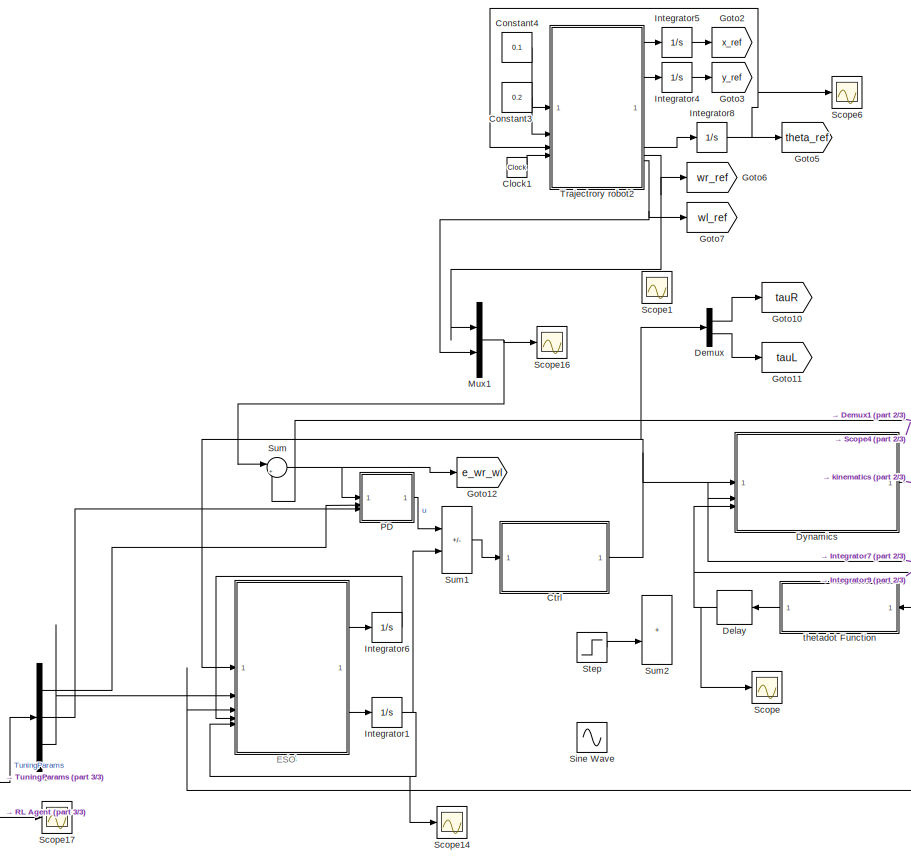
[diagram: root canvas - part 1/3, center side, full height]
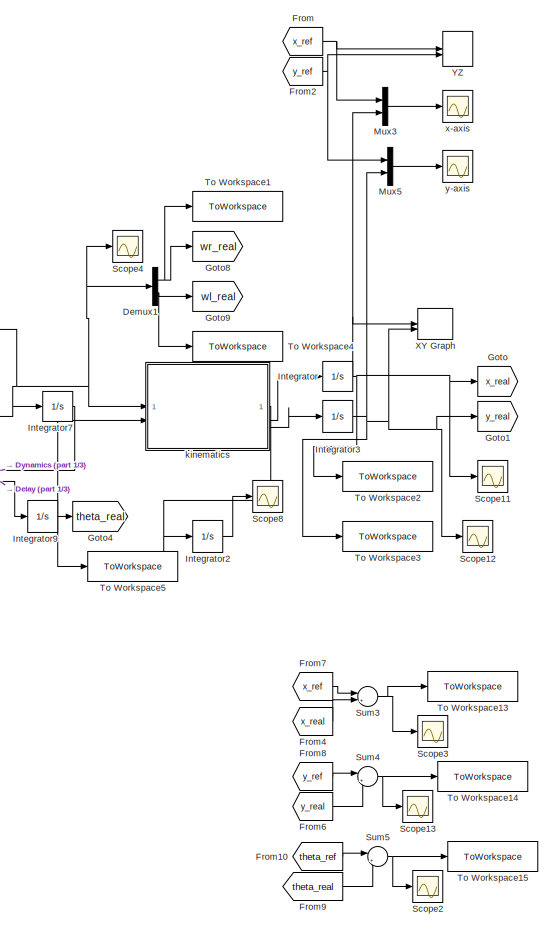
[diagram: root canvas - part 2/3, right side, full height]
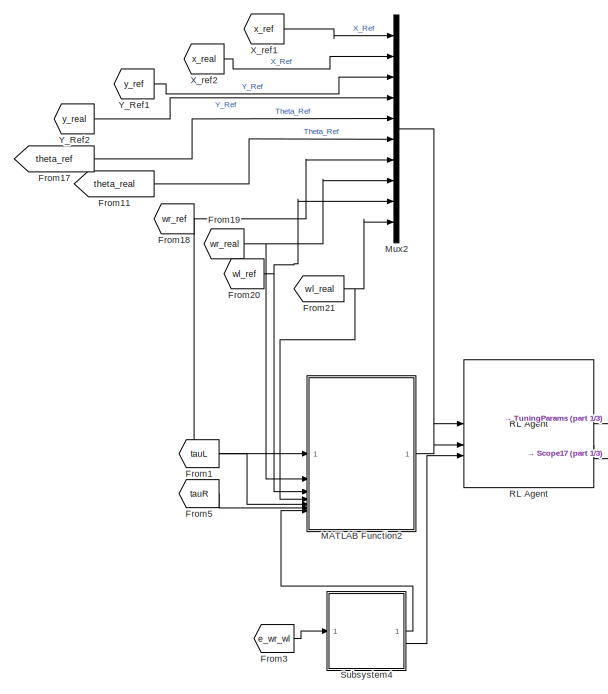
[diagram: root canvas - part 3/3, bottom left region]
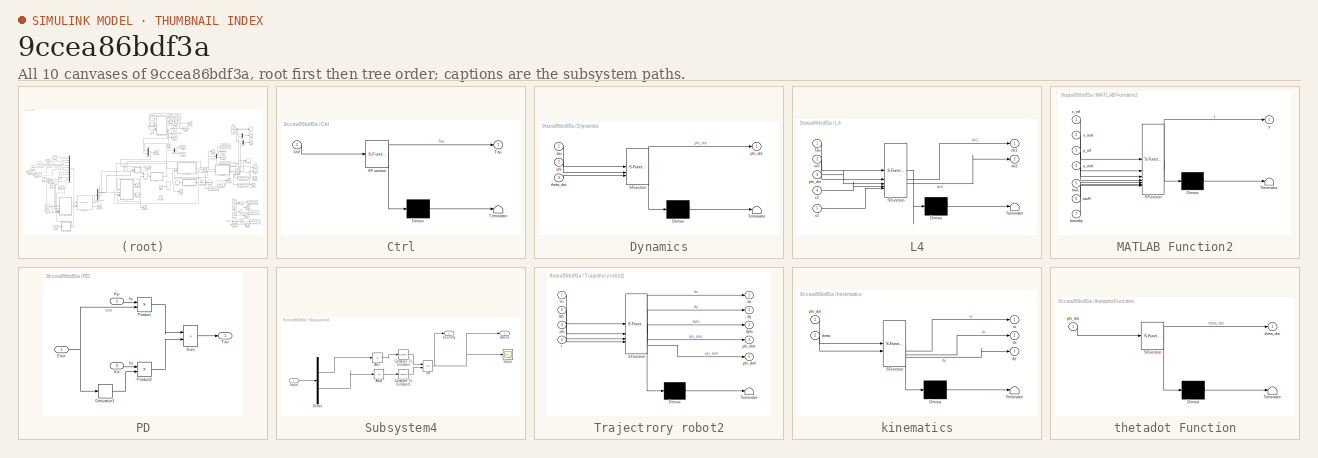
[diagram: thumbnail index - all 10 canvases of the model, root first then tree order]
MODEL slx_9ccea86bdf3a
KIND model
CONFIG AbsTol = auto
CONFIG EnableMultiTasking = off
CONFIG FixedStep = 0.01
CONFIG MaxStep = auto
CONFIG MinStep = auto
CONFIG RelTol = 1e-5
CONFIG SampleTimeConstraint = Unconstrained
CONFIG SolverName = ode4
CONFIG StartTime = 0.0
CONFIG StopTime = 31
BLOCK [Clock] Clock1
BLOCK [Constant] Constant3
  Value = 0.2
BLOCK [Constant] Constant4
  Value = 0.1
BLOCK [SubSystem] Ctrl
  ErrorFcn = Stateflow.Translate.translate
  PermitHierarchicalResolution = ExplicitOnly
  SFBlockType = MATLAB Function
  TreatAsAtomicUnit = on
BLOCK [Demux] Ctrl/ Demux 
  Outputs = 1
BLOCK [S-Function] Ctrl/ SFunction 
  EnableBusSupport = on
  FunctionName = sf_sfun
  PortCounts = [1 2]
  SFcnIsStateOwnerBlock = off
  SFunctionDeploymentMode = off
  Tag = Stateflow S-Function 5
BLOCK [Terminator] Ctrl/ Terminator 
BLOCK [Outport] Ctrl/Tau
  VectorParamsAs1DForOutWhenUnconnected = off
BLOCK [Inport] Ctrl/Uof
BLOCK [Delay] Delay
  DelayLength = 1
  InitialCondition = 0
  InputPortMap = u0
BLOCK [Demux] Demux
  Outputs = 2
BLOCK [Demux] Demux1
  Outputs = 2
BLOCK [Demux] Demux4
  Outputs = 3
BLOCK [SubSystem] Dynamics
  ErrorFcn = Stateflow.Translate.translate
  PermitHierarchicalResolution = ExplicitOnly
  SFBlockType = MATLAB Function
  TreatAsAtomicUnit = on
BLOCK [Demux] Dynamics/ Demux 
  Outputs = 1
BLOCK [S-Function] Dynamics/ SFunction 
  EnableBusSupport = on
  FunctionName = sf_sfun
  PortCounts = [3 2]
  SFcnIsStateOwnerBlock = off
  SFunctionDeploymentMode = off
  Tag = Stateflow S-Function 3
BLOCK [Terminator] Dynamics/ Terminator 
BLOCK [Inport] Dynamics/phi
  Port = 2
BLOCK [Outport] Dynamics/phi_dot
BLOCK [Inport] Dynamics/tau
BLOCK [Inport] Dynamics/theta_dot
  Port = 3
BLOCK [From] From
  GotoTag = x_ref
BLOCK [From] From1
  GotoTag = tauL
BLOCK [From] From10
  GotoTag = theta_ref
BLOCK [From] From11
  GotoTag = theta_real
BLOCK [From] From17
  GotoTag = theta_ref
BLOCK [From] From18
  GotoTag = wr_ref
BLOCK [From] From19
  GotoTag = wr_real
BLOCK [From] From2
  GotoTag = y_ref
BLOCK [From] From20
  GotoTag = wl_ref
BLOCK [From] From21
  GotoTag = wl_real
BLOCK [From] From3
  GotoTag = e_wr_wl
BLOCK [From] From4
  GotoTag = x_real
BLOCK [From] From5
  GotoTag = tauR
BLOCK [From] From6
  GotoTag = y_real
BLOCK [From] From7
  GotoTag = x_ref
BLOCK [From] From8
  GotoTag = y_ref
BLOCK [From] From9
  GotoTag = theta_real
BLOCK [Goto] Goto
  GotoTag = x_real
BLOCK [Goto] Goto1
  GotoTag = y_real
BLOCK [Goto] Goto10
  GotoTag = tauR
BLOCK [Goto] Goto11
  GotoTag = tauL
BLOCK [Goto] Goto12
  GotoTag = e_wr_wl
BLOCK [Goto] Goto2
  GotoTag = x_ref
BLOCK [Goto] Goto3
  GotoTag = y_ref
BLOCK [Goto] Goto4
  GotoTag = theta_real
BLOCK [Goto] Goto5
  GotoTag = theta_ref
BLOCK [Goto] Goto6
  GotoTag = wr_ref
BLOCK [Goto] Goto7
  GotoTag = wl_ref
BLOCK [Goto] Goto8
  GotoTag = wr_real
BLOCK [Goto] Goto9
  GotoTag = wl_real
BLOCK [Integrator] Integrator
BLOCK [Integrator] Integrator1
  InitialCondition = [0;0]
BLOCK [Integrator] Integrator2
BLOCK [Integrator] Integrator3
BLOCK [Integrator] Integrator4
BLOCK [Integrator] Integrator5
BLOCK [Integrator] Integrator6
  InitialCondition = [0;0]
BLOCK [Integrator] Integrator7
  InitialCondition = [0;0]
BLOCK [Integrator] Integrator8
BLOCK [Integrator] Integrator9
BLOCK [SubSystem] L4
  ErrorFcn = Stateflow.Translate.translate
  PermitHierarchicalResolution = ExplicitOnly
  SFBlockType = MATLAB Function
  TreatAsAtomicUnit = on
BLOCK [Demux] L4/ Demux 
  Outputs = 1
BLOCK [S-Function] L4/ SFunction 
  EnableBusSupport = on
  FunctionName = sf_sfun
  PortCounts = [5 3]
  SFcnIsStateOwnerBlock = off
  SFunctionDeploymentMode = off
  Tag = Stateflow S-Function 7
BLOCK [Terminator] L4/ Terminator 
BLOCK [Inport] L4/Tau
BLOCK [Outport] L4/dx1
  VectorParamsAs1DForOutWhenUnconnected = off
BLOCK [Outport] L4/dx2
  Port = 2
  VectorParamsAs1DForOutWhenUnconnected = off
BLOCK [Inport] L4/phi_dot
  Port = 3
BLOCK [Inport] L4/w0
  Port = 2
BLOCK [Inport] L4/x1
  Port = 4
BLOCK [Inport] L4/x2
  Port = 5
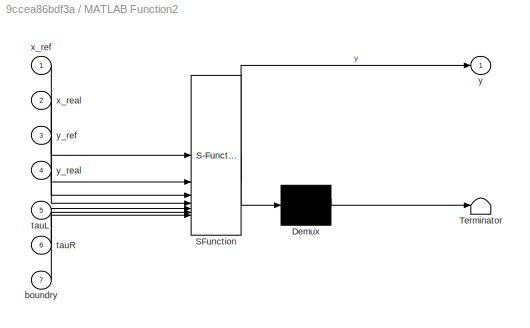
BLOCK [SubSystem] MATLAB Function2
  ErrorFcn = Stateflow.Translate.translate
  PermitHierarchicalResolution = ExplicitOnly
  SFBlockType = MATLAB Function
  TreatAsAtomicUnit = on
BLOCK [Demux] MATLAB Function2/ Demux 
  Outputs = 1
BLOCK [S-Function] MATLAB Function2/ SFunction 
  EnableBusSupport = on
  FunctionName = sf_sfun
  PortCounts = [7 2]
  SFcnIsStateOwnerBlock = off
  SFunctionDeploymentMode = off
  Tag = Stateflow S-Function 9
BLOCK [Terminator] MATLAB Function2/ Terminator 
BLOCK [Inport] MATLAB Function2/boundry
  Port = 7
BLOCK [Inport] MATLAB Function2/tauL
  Port = 5
BLOCK [Inport] MATLAB Function2/tauR
  Port = 6
BLOCK [Inport] MATLAB Function2/x_real
  Port = 2
BLOCK [Inport] MATLAB Function2/x_ref
BLOCK [Outport] MATLAB Function2/y
BLOCK [Inport] MATLAB Function2/y_real
  Port = 4
BLOCK [Inport] MATLAB Function2/y_ref
  Port = 3
BLOCK [Mux] Mux1
  DisplayOption = bar
  Inputs = 2
BLOCK [Mux] Mux2
  DisplayOption = bar
  Inputs = 10
BLOCK [Mux] Mux3
  DisplayOption = bar
  Inputs = 2
BLOCK [Mux] Mux5
  DisplayOption = bar
  Inputs = 2
BLOCK [SubSystem] PD
BLOCK [Derivative] PD/Derivative1
BLOCK [Inport] PD/Error
BLOCK [Inport] PD/Kd
  Port = 3
BLOCK [Inport] PD/Kp
  Port = 2
BLOCK [Product] PD/Product
BLOCK [Product] PD/Product2
BLOCK [Sum] PD/Sum
  IconShape = rectangular
  Inputs = |++
BLOCK [Outport] PD/Tau
BLOCK [Reference] RL Agent  REF=rllib/RL Agent
  SourceBlock = rllib/RL Agent
  SourceType = RL Agent
BLOCK [Scope] Scope
  Floating = off
  NumInputPorts = 1
  ScopeSpecificationString = Simulink.scopes.TimeScopeBlockCfg('CurrentConfiguration', extmgr.ConfigurationSet(extmgr.Configuration('Core','General UI',true),extmgr.Configuration('Core','Source UI',true),extmgr.Configuration('Sources','WiredSimulink',true,'DataLoggingVariableName','ScopeData4'),extmgr.Configuration('Visuals','Time Domain',true,'SerializedDisplays',{struct('MinYLimReal','-0.025','MaxYLimReal','0.225','YLabelRe...<+1352ch>
BLOCK [Scope] Scope1
  Floating = off
  NumInputPorts = 1
  ScopeSpecificationString = Simulink.scopes.TimeScopeBlockCfg('CurrentConfiguration', extmgr.ConfigurationSet(extmgr.Configuration('Core','General UI',true),extmgr.Configuration('Core','Source UI',true),extmgr.Configuration('Sources','WiredSimulink',true,'DataLoggingVariableName','ScopeData3'),extmgr.Configuration('Visuals','Time Domain',true,'SerializedDisplays',{struct('MinYLimReal','-0.77446','MaxYLimReal','6.97016','YLab...<+1478ch>
BLOCK [Scope] Scope11
  Floating = off
  NumInputPorts = 1
  ScopeSpecificationString = Simulink.scopes.TimeScopeBlockCfg('CurrentConfiguration', extmgr.ConfigurationSet(extmgr.Configuration('Core','General UI',true),extmgr.Configuration('Core','Source UI',true),extmgr.Configuration('Sources','WiredSimulink',true,'DataLoggingVariableName','ScopeData5'),extmgr.Configuration('Visuals','Time Domain',true,'SerializedDisplays',{struct('MinYLimReal','-0.4437','MaxYLimReal','2.05631','YLabe...<+1402ch>
BLOCK [Scope] Scope12
  Floating = off
  NumInputPorts = 1
  ScopeSpecificationString = Simulink.scopes.TimeScopeBlockCfg('CurrentConfiguration', extmgr.ConfigurationSet(extmgr.Configuration('Core','General UI',true),extmgr.Configuration('Core','Source UI',true),extmgr.Configuration('Sources','WiredSimulink',true,'DataLoggingVariableName','ScopeData6'),extmgr.Configuration('Visuals','Time Domain',true,'SerializedDisplays',{struct('MinYLimReal','-1.44972','MaxYLimReal','1.05028','YLab...<+1430ch>
BLOCK [Scope] Scope13
  Floating = off
  NumInputPorts = 1
  ScopeSpecificationString = Simulink.scopes.TimeScopeBlockCfg('CurrentConfiguration', extmgr.ConfigurationSet(extmgr.Configuration('Core','General UI',true),extmgr.Configuration('Core','Source UI',true),extmgr.Configuration('Sources','WiredSimulink',true,'DataLoggingVariableName','ScopeData1'),extmgr.Configuration('Visuals','Time Domain',true,'SerializedDisplays',{struct('MinYLimReal','-0.22919','MaxYLimReal','0.0627','YLabe...<+1361ch>
BLOCK [Scope] Scope14
  Floating = off
  NumInputPorts = 1
  ScopeSpecificationString = Simulink.scopes.TimeScopeBlockCfg('CurrentConfiguration', extmgr.ConfigurationSet(extmgr.Configuration('Core','General UI',true),extmgr.Configuration('Core','Source UI',true),extmgr.Configuration('Sources','WiredSimulink',true,'DataLoggingVariableName','ScopeData7'),extmgr.Configuration('Visuals','Time Domain',true,'SerializedDisplays',{struct('MinYLimReal','-40.99647','MaxYLimReal','221.54421','Y...<+1398ch>
BLOCK [Scope] Scope16
  Floating = off
  NumInputPorts = 1
  ScopeSpecificationString = Simulink.scopes.TimeScopeBlockCfg('CurrentConfiguration', extmgr.ConfigurationSet(extmgr.Configuration('Core','General UI',true),extmgr.Configuration('Core','Source UI',true),extmgr.Configuration('Sources','WiredSimulink',true,'DataLoggingVariableName','ScopeData8'),extmgr.Configuration('Visuals','Time Domain',true,'SerializedDisplays',{struct('MinYLimReal','0.73684','MaxYLimReal','1.36842','YLabe...<+1487ch>
BLOCK [Scope] Scope17
  Floating = off
  NumInputPorts = 1
  ScopeSpecificationString = Simulink.scopes.TimeScopeBlockCfg('CurrentConfiguration', extmgr.ConfigurationSet(extmgr.Configuration('Core','General UI',true),extmgr.Configuration('Core','Source UI',true),extmgr.Configuration('Sources','WiredSimulink',true,'DataLoggingVariableName','ScopeData2'),extmgr.Configuration('Visuals','Time Domain',true),extmgr.Configuration('Tools','Plot Navigation',true),extmgr.Configuration('Tools',...<+40ch>
BLOCK [Scope] Scope2
  Floating = off
  NumInputPorts = 1
  ScopeSpecificationString = Simulink.scopes.TimeScopeBlockCfg('CurrentConfiguration', extmgr.ConfigurationSet(extmgr.Configuration('Core','General UI',true),extmgr.Configuration('Core','Source UI',true),extmgr.Configuration('Sources','WiredSimulink',true,'DataLoggingVariableName','ScopeData1'),extmgr.Configuration('Visuals','Time Domain',true,'SerializedDisplays',{struct('MinYLimReal','-0.22919','MaxYLimReal','0.0627','YLabe...<+1361ch>
BLOCK [Scope] Scope3
  Floating = off
  NumInputPorts = 1
  ScopeSpecificationString = Simulink.scopes.TimeScopeBlockCfg('CurrentConfiguration', extmgr.ConfigurationSet(extmgr.Configuration('Core','General UI',true),extmgr.Configuration('Core','Source UI',true),extmgr.Configuration('Sources','WiredSimulink',true,'DataLoggingVariableName','ScopeData2'),extmgr.Configuration('Visuals','Time Domain',true,'SerializedDisplays',{struct('MinYLimReal','-0.07136','MaxYLimReal','0.23015','YLab...<+1363ch>
BLOCK [Scope] Scope4
  Floating = off
  NumInputPorts = 1
  ScopeSpecificationString = Simulink.scopes.TimeScopeBlockCfg('CurrentConfiguration', extmgr.ConfigurationSet(extmgr.Configuration('Core','General UI',true),extmgr.Configuration('Core','Source UI',true),extmgr.Configuration('Sources','WiredSimulink',true,'DataLoggingVariableName','ScopeData10'),extmgr.Configuration('Visuals','Time Domain',true,'SerializedDisplays',{struct('MinYLimReal','-0.77446','MaxYLimReal','6.97016','YLa...<+1479ch>
BLOCK [Scope] Scope6
  Floating = off
  NumInputPorts = 1
  ScopeSpecificationString = Simulink.scopes.TimeScopeBlockCfg('CurrentConfiguration', extmgr.ConfigurationSet(extmgr.Configuration('Core','General UI',true),extmgr.Configuration('Core','Source UI',true),extmgr.Configuration('Sources','WiredSimulink',true,'DataLoggingVariableName','ScopeData1'),extmgr.Configuration('Visuals','Time Domain',true,'SerializedDisplays',{struct('MinYLimReal','-0.775','MaxYLimReal','6.975','YLabelRe...<+1383ch>
BLOCK [Scope] Scope8
  Floating = off
  NumInputPorts = 1
  ScopeSpecificationString = Simulink.scopes.TimeScopeBlockCfg('CurrentConfiguration', extmgr.ConfigurationSet(extmgr.Configuration('Core','General UI',true),extmgr.Configuration('Core','Source UI',true),extmgr.Configuration('Sources','WiredSimulink',true,'DataLoggingVariableName','ScopeData12'),extmgr.Configuration('Visuals','Time Domain',true,'SerializedDisplays',{struct('MinYLimReal','-0.77446','MaxYLimReal','6.97016','YLa...<+1479ch>
BLOCK [Sin] Sine Wave
  Amplitude = 5
  SampleTime = 0
BLOCK [Step] Step
  SampleTime = 0
  Time = 5
BLOCK [SubSystem] Subsystem4
  NameLocation = top
BLOCK [Abs] Subsystem4/Abs
  SaturateOnIntegerOverflow = off
BLOCK [Abs] Subsystem4/Abs1
  SaturateOnIntegerOverflow = off
BLOCK [Reference] Subsystem4/Compare To Constant  REF=simulink/Logic and Bit
Operations/Compare
To Constant
  SourceBlock = simulink/Logic and Bit\nOperations/Compare\nTo Constant
  SourceType = Compare To Constant
BLOCK [Reference] Subsystem4/Compare To Constant1  REF=simulink/Logic and Bit
Operations/Compare
To Constant
  SourceBlock = simulink/Logic and Bit\nOperations/Compare\nTo Constant
  SourceType = Compare To Constant
BLOCK [Demux] Subsystem4/Demux
  Outputs = 2
BLOCK [Inport] Subsystem4/Input
BLOCK [Outport] Subsystem4/IsDone
  Port = 2
BLOCK [Logic] Subsystem4/OR
  AllPortsSameDT = off
  IconShape = distinctive
  Operator = OR
  OutDataTypeStr = boolean
BLOCK [Scope] Subsystem4/Scope
  Floating = off
  NumInputPorts = 1
  ScopeSpecificationString = Simulink.scopes.TimeScopeBlockCfg('CurrentConfiguration', extmgr.ConfigurationSet(extmgr.Configuration('Core','General UI',true),extmgr.Configuration('Core','Source UI',true),extmgr.Configuration('Sources','WiredSimulink',true,'DataLoggingVariableName','ScopeData2'),extmgr.Configuration('Visuals','Time Domain',true,'SerializedDisplays',{struct('MinYLimReal','-1.00000','MaxYLimReal','1.00000','YLab...<+1386ch>
BLOCK [Outport] Subsystem4/boundry
BLOCK [Sum] Sum
  Inputs = |+-
BLOCK [Sum] Sum1
  IconShape = rectangular
  Inputs = +-
BLOCK [Sum] Sum2
  IconShape = rectangular
BLOCK [Sum] Sum3
  Inputs = |+-
BLOCK [Sum] Sum4
  Inputs = |+-
BLOCK [Sum] Sum5
  Inputs = |+-
BLOCK [ToWorkspace] To Workspace1
  FixptAsFi = on
  MaxDataPoints = inf
  SampleTime = -1
  SaveFormat = Timeseries
  VariableName = wr_realRL
BLOCK [ToWorkspace] To Workspace13
  FixptAsFi = on
  MaxDataPoints = inf
  SampleTime = -1
  SaveFormat = Timeseries
  VariableName = ex_RL
BLOCK [ToWorkspace] To Workspace14
  FixptAsFi = on
  MaxDataPoints = inf
  SampleTime = -1
  SaveFormat = Timeseries
  VariableName = ey_RL
BLOCK [ToWorkspace] To Workspace15
  FixptAsFi = on
  MaxDataPoints = inf
  SampleTime = -1
  SaveFormat = Timeseries
  VariableName = etheta_RL
BLOCK [ToWorkspace] To Workspace2
  FixptAsFi = on
  MaxDataPoints = inf
  SampleTime = -1
  SaveFormat = Timeseries
  VariableName = x_realRL
BLOCK [ToWorkspace] To Workspace3
  FixptAsFi = on
  MaxDataPoints = inf
  SampleTime = -1
  SaveFormat = Timeseries
  VariableName = y_realRL
BLOCK [ToWorkspace] To Workspace4
  FixptAsFi = on
  MaxDataPoints = inf
  SampleTime = -1
  SaveFormat = Timeseries
  VariableName = wl_realRL
BLOCK [ToWorkspace] To Workspace5
  FixptAsFi = on
  MaxDataPoints = inf
  SampleTime = -1
  SaveFormat = Timeseries
  VariableName = theta_realRL
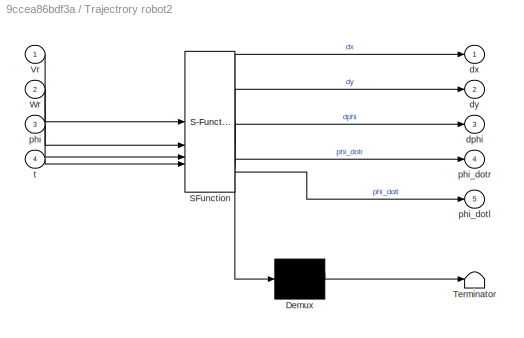
BLOCK [SubSystem] Trajectrory robot2
  ErrorFcn = Stateflow.Translate.translate
  PermitHierarchicalResolution = ExplicitOnly
  SFBlockType = MATLAB Function
  TreatAsAtomicUnit = on
BLOCK [Demux] Trajectrory robot2/ Demux 
  Outputs = 1
BLOCK [S-Function] Trajectrory robot2/ SFunction 
  EnableBusSupport = on
  FunctionName = sf_sfun
  PortCounts = [4 6]
  SFcnIsStateOwnerBlock = off
  SFunctionDeploymentMode = off
  Tag = Stateflow S-Function 8
BLOCK [Terminator] Trajectrory robot2/ Terminator 
BLOCK [Inport] Trajectrory robot2/Vr
BLOCK [Inport] Trajectrory robot2/Wr
  Port = 2
BLOCK [Outport] Trajectrory robot2/dphi
  Port = 3
BLOCK [Outport] Trajectrory robot2/dx
BLOCK [Outport] Trajectrory robot2/dy
  Port = 2
BLOCK [Inport] Trajectrory robot2/phi
  Port = 3
BLOCK [Outport] Trajectrory robot2/phi_dotl
  Port = 5
BLOCK [Outport] Trajectrory robot2/phi_dotr
  Port = 4
BLOCK [Inport] Trajectrory robot2/t
  Port = 4
BLOCK [Record] XY Graph
  CompatibilityTag = XY
  FileSettingsInternal = {"entries":[{"content":{"excelSettings":{"content":{},"type":"Streamout.ExcelSettings"}},"type":"Streamout.FileSettingStorage","uuid":""}],"packageUris":["http:\/\/schema.mathworks.com\/mf0\/streamout_blocks\/R2020a"],"version":"1.0"}
  Layout = [1 1]
  SignalsInternal = {"entries":[{"content":{"signals":[{"content":{"blockPath":[],"dimensions":[1],"domain":"","lineColor":"#a2142f","plots":[ 1 ],"port":1,"sid":[""],"signalID":1,"signalName":"Integrator"},"type":"RecordBlkView.Signal","uuid":""},{"content":{"blockPath":[],"dimensions":[1],"domain":"","lineColor":"#139fff","plots":[ 1 ],"port":2,"sid":[""],"signalID":2,"signalName":"Integrator3"},"type":"RecordBlkVi...<+167ch>
  VisualizationBindings = {"xyplotplugin":{"info":[{"series":[{"bindingParametersList":[{"parameter":"X-Axis","signalID":1,"signalName":"Integrator"},{"parameter":"Y-Axis","signalID":2,"signalName":"Integrator3"}],"seriesID":0}],"subplotID":1}]}}
BLOCK [From] X_ref1
  GotoTag = x_ref
BLOCK [From] X_ref2
  GotoTag = x_real
BLOCK [Record] YZ
  CompatibilityTag = XY
  FileSettingsInternal = {"entries":[{"content":{"excelSettings":{"content":{},"type":"Streamout.ExcelSettings"}},"type":"Streamout.FileSettingStorage","uuid":""}],"packageUris":["http:\/\/schema.mathworks.com\/mf0\/streamout_blocks\/R2020a"],"version":"1.0"}
  Layout = [1 1]
  SignalsInternal = {"entries":[{"content":{"signals":[{"content":{"blockPath":[],"dimensions":[1],"domain":"","lineColor":"#a2142f","plots":[ 1 ],"port":1,"sid":[""],"signalID":1,"signalName":"From"},"type":"RecordBlkView.Signal","uuid":""},{"content":{"blockPath":[],"dimensions":[1],"domain":"","lineColor":"#139fff","plots":[ 1 ],"port":2,"sid":[""],"signalID":2,"signalName":"From2"},"type":"RecordBlkView.Signal","...<+155ch>
  VisualizationBindings = {"xyplotplugin":{"info":[{"series":[{"bindingParametersList":[{"parameter":"X-Axis","signalID":1,"signalName":"From"},{"parameter":"Y-Axis","signalID":2,"signalName":"From2"}],"seriesID":0}],"subplotID":1}]}}
  st = -1
BLOCK [From] Y_Ref1
  GotoTag = y_ref
BLOCK [From] Y_Ref2
  GotoTag = y_real
BLOCK [SubSystem] kinematics
  ErrorFcn = Stateflow.Translate.translate
  PermitHierarchicalResolution = ExplicitOnly
  SFBlockType = MATLAB Function
  TreatAsAtomicUnit = on
BLOCK [Demux] kinematics/ Demux 
  Outputs = 1
BLOCK [S-Function] kinematics/ SFunction 
  EnableBusSupport = on
  FunctionName = sf_sfun
  PortCounts = [2 4]
  SFcnIsStateOwnerBlock = off
  SFunctionDeploymentMode = off
  Tag = Stateflow S-Function 4
BLOCK [Terminator] kinematics/ Terminator 
BLOCK [Outport] kinematics/dx
  Port = 2
BLOCK [Outport] kinematics/dy
  Port = 3
BLOCK [Inport] kinematics/phi_dot
BLOCK [Inport] kinematics/theta
  Port = 2
BLOCK [Outport] kinematics/w
BLOCK [SubSystem] thetadot Function
  ErrorFcn = Stateflow.Translate.translate
  PermitHierarchicalResolution = ExplicitOnly
  SFBlockType = MATLAB Function
  TreatAsAtomicUnit = on
BLOCK [Demux] thetadot Function/ Demux 
  Outputs = 1
BLOCK [S-Function] thetadot Function/ SFunction 
  EnableBusSupport = on
  FunctionName = sf_sfun
  PortCounts = [1 2]
  SFcnIsStateOwnerBlock = off
  SFunctionDeploymentMode = off
  Tag = Stateflow S-Function 2
BLOCK [Terminator] thetadot Function/ Terminator 
BLOCK [Inport] thetadot Function/phi_dot
BLOCK [Outport] thetadot Function/theta_dot
BLOCK [Scope] x-axis
  Floating = off
  NumInputPorts = 1
  ScopeSpecificationString = Simulink.scopes.TimeScopeBlockCfg('CurrentConfiguration', extmgr.ConfigurationSet(extmgr.Configuration('Core','General UI',true),extmgr.Configuration('Core','Source UI',true),extmgr.Configuration('Sources','WiredSimulink',true,'DataLoggingVariableName','ScopeData13','DataLogging',true),extmgr.Configuration('Visuals','Time Domain',true,'SerializedDisplays',{struct('MinYLimReal','-0.64231','MaxYLimR...<+1476ch>
BLOCK [Scope] y-axis
  Floating = off
  NumInputPorts = 1
  ScopeSpecificationString = Simulink.scopes.TimeScopeBlockCfg('CurrentConfiguration', extmgr.ConfigurationSet(extmgr.Configuration('Core','General UI',true,'FigureColor',[0 0 0]),extmgr.Configuration('Core','Source UI',true),extmgr.Configuration('Sources','WiredSimulink',true,'DataLoggingVariableName','ScopeData14','DataLogging',true),extmgr.Configuration('Visuals','Time Domain',true,'SerializedDisplays',{struct('MinYLimReal...<+1703ch>
ANNOTATION (root): ESO
LINE Clock1:1 -> Trajectrory robot2:4
LINE Constant3:1 -> Trajectrory robot2:2
LINE Constant4:1 -> Trajectrory robot2:1
NET Ctrl:1 -> Demux:1, Dynamics:1, L4:1
NET Delay:1 -> Dynamics:3, Integrator9:1, Scope:1
NET Demux1:1 -> Goto8:1, To Workspace1:1
NET Demux1:2 -> Goto9:1, To Workspace4:1
LINE Demux4:1 -> PD:2
LINE Demux4:2 -> PD:3
LINE Demux4:3 -> L4:2
LINE Demux:1 -> Goto10:1
LINE Demux:2 -> Goto11:1
NET Dynamics:1 -> Demux1:1, Integrator7:1, L4:3, Scope4:1, Sum:2, kinematics:1, thetadot Function:1
LINE From10:1 -> Sum5:1
LINE From11:1 -> Mux2:6
LINE From17:1 -> Mux2:5
NET From18:1 -> MATLAB Function2:1, Mux2:7
NET From19:1 -> MATLAB Function2:2, Mux2:8
LINE From1:1 -> MATLAB Function2:5
NET From20:1 -> MATLAB Function2:3, Mux2:9
NET From21:1 -> MATLAB Function2:4, Mux2:10
NET From2:1 -> Mux5:1, YZ:2
LINE From3:1 -> Subsystem4:1
LINE From4:1 -> Sum3:2
LINE From5:1 -> MATLAB Function2:6
LINE From6:1 -> Sum4:2
LINE From7:1 -> Sum3:1
LINE From8:1 -> Sum4:1
LINE From9:1 -> Sum5:2
NET From:1 -> Mux3:1, YZ:1
NET Integrator1:1 -> L4:5, Scope14:1, Sum1:2
LINE Integrator2:1 -> Scope8:1
NET Integrator3:1 -> Goto1:1, Mux5:2, Scope12:1, To Workspace3:1, XY Graph:2
LINE Integrator4:1 -> Goto3:1
LINE Integrator5:1 -> Goto2:1
LINE Integrator6:1 -> L4:4
LINE Integrator7:1 -> Dynamics:2
NET Integrator8:1 -> Goto5:1, Scope6:1, Trajectrory robot2:3
NET Integrator9:1 -> Goto4:1, To Workspace5:1, kinematics:2
NET Integrator:1 -> Goto:1, Mux3:2, Scope11:1, To Workspace2:1, XY Graph:1
LINE L4:1 -> Integrator6:1
LINE L4:2 -> Integrator1:1
LINE MATLAB Function2:1 -> RL Agent:2
NET Mux1:1 -> Scope16:1, Sum:1
LINE Mux2:1 -> RL Agent:1
LINE Mux3:1 -> x-axis:1
LINE Mux5:1 -> y-axis:1
LINE PD/Derivative1:1 -> PD/Product2:2
NET PD/Error:1 -> PD/Derivative1:1, PD/Product:2
LINE PD/Kd:1 -> PD/Product2:1
LINE PD/Kp:1 -> PD/Product:1
LINE PD/Product2:1 -> PD/Sum:2
LINE PD/Product:1 -> PD/Sum:1
LINE PD/Sum:1 -> PD/Tau:1
LINE PD:1 -> Sum1:1
LINE RL Agent:1 -> Demux4:1
LINE RL Agent:2 -> Scope17:1
LINE Step:1 -> Sum2:2
LINE Subsystem4/Abs1:1 -> Subsystem4/Compare To Constant1:1
LINE Subsystem4/Abs:1 -> Subsystem4/Compare To Constant:1
LINE Subsystem4/Compare To Constant1:1 -> Subsystem4/OR:2
LINE Subsystem4/Compare To Constant:1 -> Subsystem4/OR:1
LINE Subsystem4/Demux:1 -> Subsystem4/Abs:1
LINE Subsystem4/Demux:2 -> Subsystem4/Abs1:1
LINE Subsystem4/Input:1 -> Subsystem4/Demux:1
NET Subsystem4/OR:1 -> Subsystem4/IsDone:1, Subsystem4/Scope:1, Subsystem4/boundry:1
LINE Subsystem4:1 -> MATLAB Function2:7
LINE Subsystem4:2 -> RL Agent:3
LINE Sum1:1 -> Ctrl:1
NET Sum3:1 -> Scope3:1, To Workspace13:1
NET Sum4:1 -> Scope13:1, To Workspace14:1
NET Sum5:1 -> Scope2:1, To Workspace15:1
NET Sum:1 -> Goto12:1, PD:1
LINE Trajectrory robot2:1 -> Integrator5:1
LINE Trajectrory robot2:2 -> Integrator4:1
LINE Trajectrory robot2:3 -> Integrator8:1
NET Trajectrory robot2:4 -> Goto6:1, Mux1:1
NET Trajectrory robot2:5 -> Goto7:1, Mux1:2
LINE X_ref1:1 -> Mux2:1
LINE X_ref2:1 -> Mux2:2
LINE Y_Ref1:1 -> Mux2:3
LINE Y_Ref2:1 -> Mux2:4
LINE kinematics:1 -> Integrator2:1
LINE kinematics:2 -> Integrator:1
LINE kinematics:3 -> Integrator3:1
LINE thetadot Function:1 -> Delay:1
note: NET lines group one-source signal fan-out (src -> all destinations, sorted); 1:1 wires keep LINE
CHART thetadot Function states=1 transitions=1
  STATE_LABEL 'eML_blk_kernel()'
  STATE_LABEL 'SCRIPT:\nfunction theta_dot = fcn(phi_dot)\nL=0.24;\nR=0.095;\ntheta_dot = 0;\nphi_dotr = phi_dot(1);\nphi_dotl = phi_dot(2);\n\nw= (R .* (phi_dotr - phi_dotl))./ L;\n\ntheta_dot = w;\n'
CHART Dynamics states=1 transitions=1
  STATE_LABEL 'eML_blk_kernel()'
  STATE_LABEL 'SCRIPT:\nfunction phi_dot   = Dynamic_Model(tau, phi, theta_dot)\nL=0.24;\nR=0.095; %distnace between center and 1 wheel not 2 wheels distance\nmc= 17;\nmw= 0.5;\nm= mc+(2*mw); %total mass of the robot\nIc=0.537;\nIw=0.0023;\nIm=0.0011;\nd=0.05;\nI= Ic + (mc*(d^2)) + (2*mw*(L^2)) + (2*Im);\n\nM11= Iw + ( ((R^2)/(4*(L^2))) * ((m*(L^2))+I) );\nM12= ((R^2)/(4*(L^2))) * ((m*(L^2))-I);\nM21= M12;\nM22= M11;\nM = [M11, ...<+164ch>'
CHART kinematics states=1 transitions=1
  STATE_LABEL 'eML_blk_kernel()'
  STATE_LABEL 'SCRIPT:\nfunction [w, dx, dy] = kinematics(phi_dot, theta)\n\nR=0.095;\n\nphi_dotr = phi_dot(1);\nphi_dotl = phi_dot(2);\nv= (R .* (phi_dotr + phi_dotl))/ 2;\n\nL=0.24;\nw= (R .* (phi_dotr - phi_dotl))/ L;\n\ndx =  v .* cos(theta);\ndy =  v .* sin(theta);'
CHART Ctrl states=1 transitions=1
  STATE_LABEL 'eML_blk_kernel()'
  STATE_LABEL 'SCRIPT:\nfunction Tau = ctrl(Uof)\nL=0.24;\nR=0.095;\nmc= 17;\nmw= 0.5;\nm= mc+(2*mw); %total mass of the robot\nIc=0.537;\nIw=0.0023;\nIm=0.0011;\nd=0.05;\nI= Ic + (mc*(d^2)) + (2*mw*(L^2)) + (2*Im);\n\nM11= Iw + ( ((R^2)/(4*(L^2))) * ((m*(L^2))+I) );\nM12= ((R^2)/(4*(L^2))) * ((m*(L^2))-I);\nM21= M12;\nM22= M11;\nM=[M11 M12;\n    M21 M22];\n\nTau=M*Uof;\nend'
CHART L4 states=1 transitions=1
  STATE_LABEL 'eML_blk_kernel()'
  STATE_LABEL 'SCRIPT:\nfunction [dx1, dx2]=ESO(Tau,w0,phi_dot, x1,x2)\n%R= 0.072;\n%L= 0.21; %distnace between center and 1 wheel not 2 wheels distance\n%mc= 20.1;\n%mw= 0.15;\n%m= 20.1+(2*0.15); %total mass of the robot\n\n%Ic=0.1;\n%Iw=0.001;\n%Im=0.001;\n%d=0.152;\n%I= Ic + (mc*(d^2)) + (2*mw*(L^2)) + (2*Im);\n\nL=0.24;\nR=0.095;\nmc= 17;\nmw= 0.5;\nm= mc+(2*mw); %total mass of the robot\nIc=0.537;\nIw=0.0023;\nIm=0.0011;\nd=0.05...<+351ch>'
CHART Trajectrory robot2 states=1 transitions=1
  STATE_LABEL 'eML_blk_kernel()'
  STATE_LABEL 'SCRIPT:\nfunction [dx, dy, dphi, phi_dotr, phi_dotl] = desiredtraj(Vr, Wr, phi, t)\n    d = 0.007; % Distance from center of rotation to the point of interest (if applicable)\n    dx = cos(phi) * Vr + d * sin(phi) * Wr;\n    dy = sin(phi) * Vr - d * cos(phi) * Wr;\n    dphi = Wr;\n    L=0.24;\n    R=0.095;\n\n    phi_dotr = (2 * Vr + Wr * L) ./ (2 * R);\n    phi_dotl = (2 * Vr - Wr * L) ./ (2 * R);\n    \n\nen...<+2ch>'
CHART MATLAB Function2 states=1 transitions=1
  STATE_LABEL 'eML_blk_kernel()'
  STATE_LABEL 'SCRIPT:\nfunction y = reward(x_ref, x_real,y_ref, y_real, tauL , tauR, boundry)\n    % Position error (scaled)\n    e_x = x_ref - x_real;\n    \n    e_y = y_ref - y_real;\n    e= sqrt((e_x)^2 + (e_y)^2);\n    % Torque penalty (scaled)\n    %torq = (tauL^2 + tauR^2); \n    torq = abs(tauL) + abs(tauR);\n\n    % Total reward: penalties + positive rewards\n    y = - (0.001 *e) -(0.002 * torq) - 1*boundry ;\n\nend\n'
CHART  states=0 transitions=0
CHART  states=0 transitions=0
CHART  states=0 transitions=0
CHART  states=0 transitions=0
CHART  states=0 transitions=0
CHART  states=0 transitions=0
CHART  states=0 transitions=0
